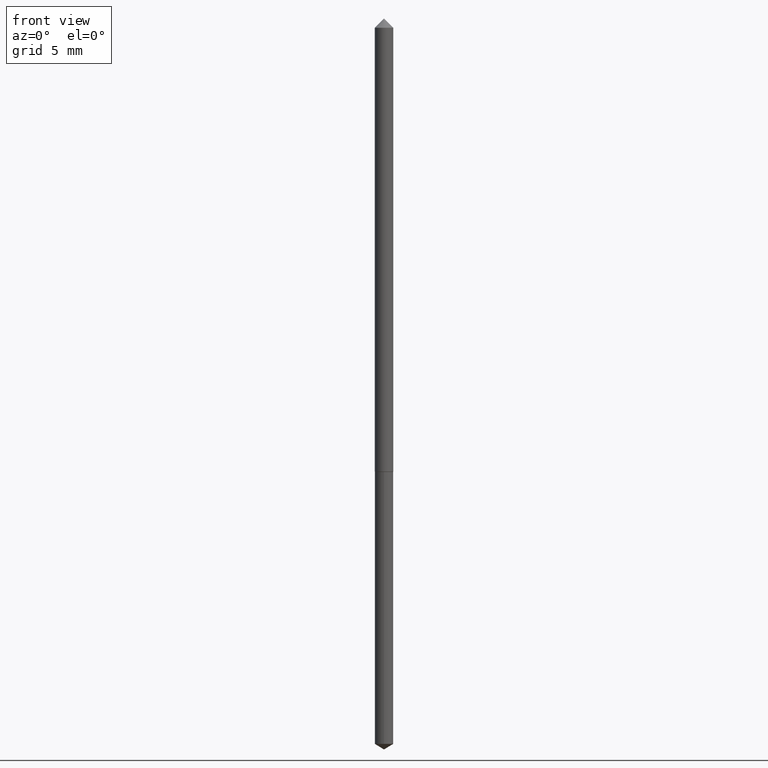
[diagram: clean part render]
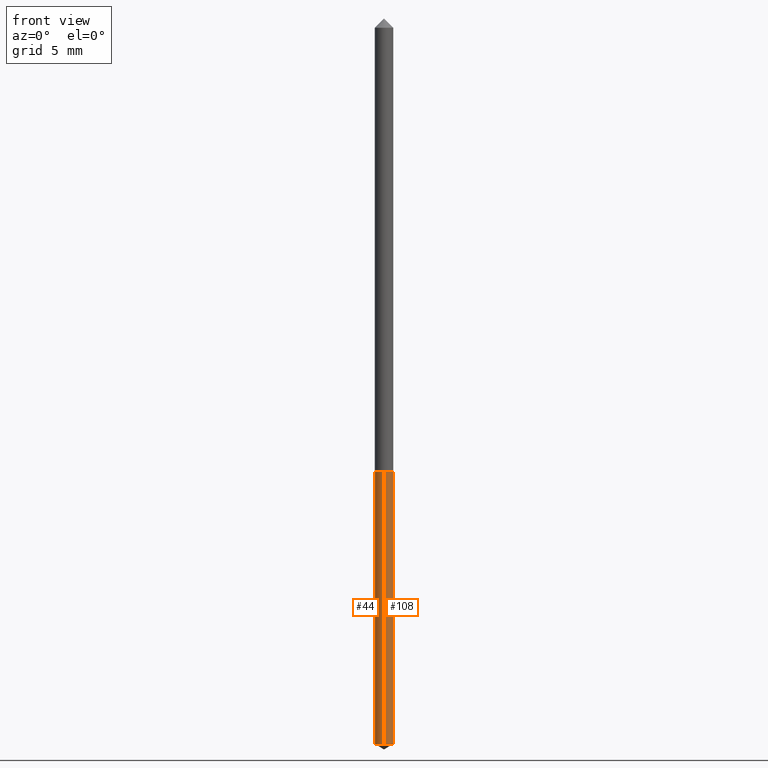
[diagram: same view with one multi-face feature highlighted, each face labeled with its STEP entity id]
A machine part, front view. The highlighted faces form ONE feature: a constant-radius fillet chain: 2 tangent blend faces with common blend radius 0.3962 mm. The faces share edges in the B-rep.
Their STEP definitions:
[1] entity #108 (Cylinder):
#16 = FACE_OUTER_BOUND ( 'NONE', #255, .T. ) ;
#23 = AXIS2_PLACEMENT_3D ( 'NONE', #193, #140, #110 ) ;
#25 = CARTESIAN_POINT ( 'NONE',  ( 1.108446667786060567E-16, 0.01559999999999727403, -0.7812000000000001165 ) ) ;
#49 = DIRECTION ( 'NONE',  ( -2.445620456542437956E-29, 3.491264166900087350E-15, 1.000000000000000000 ) ) ;
#51 = EDGE_CURVE ( 'NONE', #150, #241, #308, .T. ) ;
#55 = DIRECTION ( 'NONE',  ( -2.445620456542437956E-29, 3.491264166900087744E-15, 1.000000000000000000 ) ) ;
#73 = CARTESIAN_POINT ( 'NONE',  ( -1.089342177718866371E-16, -0.01560000000000272627, -0.7812000000000001165 ) ) ;
#76 = DIRECTION ( 'NONE',  ( -2.445620456542437956E-29, 3.491264166900087350E-15, 1.000000000000000000 ) ) ;
#95 = ORIENTED_EDGE ( 'NONE', *, *, #257, .F. ) ;
#96 = ORIENTED_EDGE ( 'NONE', *, *, #195, .T. ) ;
#97 = LINE ( 'NONE', #219, #152 ) ;
#108 = ADVANCED_FACE ( 'NONE', ( #16 ), #356, .T. ) ;
#110 = DIRECTION ( 'NONE',  ( -6.982962677686265922E-15, -1.000000000000000000, 0.000000000000000000 ) ) ;
#115 = CIRCLE ( 'NONE', #23, 0.01559999999999999928 ) ;
#133 = CARTESIAN_POINT ( 'NONE',  ( 1.910400231391829134E-29, -2.727545221904265644E-15, -0.7812000000000001165 ) ) ;
#139 = CARTESIAN_POINT ( 'NONE',  ( 3.033983259884700615E-29, -4.331524758230234496E-15, -1.240626574343170141 ) ) ;
#140 = DIRECTION ( 'NONE',  ( -2.445620456542437956E-29, 3.491264166900087744E-15, 1.000000000000000000 ) ) ;
#150 = VERTEX_POINT ( 'NONE', #187 ) ;
#152 = VECTOR ( 'NONE', #49, 39.37007874015748143 ) ;
#179 = VERTEX_POINT ( 'NONE', #357 ) ;
#186 = DIRECTION ( 'NONE',  ( -2.445620456542437956E-29, 3.491264166900087744E-15, 1.000000000000000000 ) ) ;
#187 = CARTESIAN_POINT ( 'NONE',  ( -1.089342177718754328E-16, -0.01560000000000433609, -1.240626574343170141 ) ) ;
#193 = CARTESIAN_POINT ( 'NONE',  ( 1.910400231391829134E-29, -2.727545221904265644E-15, -0.7812000000000001165 ) ) ;
#195 = EDGE_CURVE ( 'NONE', #179, #286, #97, .T. ) ;
#201 = ORIENTED_EDGE ( 'NONE', *, *, #51, .F. ) ;
#218 = AXIS2_PLACEMENT_3D ( 'NONE', #139, #55, #254 ) ;
#219 = CARTESIAN_POINT ( 'NONE',  ( 1.108446667785947168E-16, 0.01559999999999727056, -0.7812000000000001165 ) ) ;
#236 = ORIENTED_EDGE ( 'NONE', *, *, #307, .T. ) ;
#241 = VERTEX_POINT ( 'NONE', #341 ) ;
#247 = DIRECTION ( 'NONE',  ( -6.982962677686265922E-15, -1.000000000000000000, 0.000000000000000000 ) ) ;
#254 = DIRECTION ( 'NONE',  ( -6.982962677686265922E-15, -1.000000000000000000, 0.000000000000000000 ) ) ;
#255 = EDGE_LOOP ( 'NONE', ( #236, #96, #95, #201 ) ) ;
#257 = EDGE_CURVE ( 'NONE', #241, #286, #115, .T. ) ;
#268 = CIRCLE ( 'NONE', #218, 0.01559999999999999928 ) ;
#283 = AXIS2_PLACEMENT_3D ( 'NONE', #133, #186, #247 ) ;
#286 = VERTEX_POINT ( 'NONE', #25 ) ;
#307 = EDGE_CURVE ( 'NONE', #150, #179, #268, .T. ) ;
#308 = LINE ( 'NONE', #73, #331 ) ;
#331 = VECTOR ( 'NONE', #76, 39.37007874015748143 ) ;
#341 = CARTESIAN_POINT ( 'NONE',  ( -1.089342177718866371E-16, -0.01560000000000272627, -0.7812000000000001165 ) ) ;
#356 = CYLINDRICAL_SURFACE ( 'NONE', #283, 0.01559999999999999928 ) ;
#357 = CARTESIAN_POINT ( 'NONE',  ( 1.108446667786059827E-16, 0.01559999999999567115, -1.240626574343170141 ) ) ;
[2] entity #44 (Cylinder):
#24 = CIRCLE ( 'NONE', #304, 0.01559999999999999928 ) ;
#25 = CARTESIAN_POINT ( 'NONE',  ( 1.108446667786060567E-16, 0.01559999999999727403, -0.7812000000000001165 ) ) ;
#43 = ORIENTED_EDGE ( 'NONE', *, *, #342, .F. ) ;
#44 = ADVANCED_FACE ( 'NONE', ( #75 ), #100, .T. ) ;
#49 = DIRECTION ( 'NONE',  ( -2.445620456542437956E-29, 3.491264166900087350E-15, 1.000000000000000000 ) ) ;
#51 = EDGE_CURVE ( 'NONE', #150, #241, #308, .T. ) ;
#57 = CARTESIAN_POINT ( 'NONE',  ( 3.033983259884700615E-29, -4.331524758230234496E-15, -1.240626574343170141 ) ) ;
#60 = ORIENTED_EDGE ( 'NONE', *, *, #301, .T. ) ;
#73 = CARTESIAN_POINT ( 'NONE',  ( -1.089342177718866371E-16, -0.01560000000000272627, -0.7812000000000001165 ) ) ;
#75 = FACE_OUTER_BOUND ( 'NONE', #153, .T. ) ;
#76 = DIRECTION ( 'NONE',  ( -2.445620456542437956E-29, 3.491264166900087350E-15, 1.000000000000000000 ) ) ;
#83 = DIRECTION ( 'NONE',  ( -2.445620456542437956E-29, 3.491264166900087744E-15, 1.000000000000000000 ) ) ;
#97 = LINE ( 'NONE', #219, #152 ) ;
#100 = CYLINDRICAL_SURFACE ( 'NONE', #326, 0.01559999999999999928 ) ;
#145 = ORIENTED_EDGE ( 'NONE', *, *, #195, .F. ) ;
#150 = VERTEX_POINT ( 'NONE', #187 ) ;
#152 = VECTOR ( 'NONE', #49, 39.37007874015748143 ) ;
#153 = EDGE_LOOP ( 'NONE', ( #145, #60, #316, #43 ) ) ;
#167 = DIRECTION ( 'NONE',  ( -2.445620456542437956E-29, 3.491264166900087744E-15, 1.000000000000000000 ) ) ;
#169 = DIRECTION ( 'NONE',  ( -6.982962677686265922E-15, -1.000000000000000000, 0.000000000000000000 ) ) ;
#179 = VERTEX_POINT ( 'NONE', #357 ) ;
#187 = CARTESIAN_POINT ( 'NONE',  ( -1.089342177718754328E-16, -0.01560000000000433609, -1.240626574343170141 ) ) ;
#195 = EDGE_CURVE ( 'NONE', #179, #286, #97, .T. ) ;
#215 = DIRECTION ( 'NONE',  ( -6.982962677686265922E-15, -1.000000000000000000, 0.000000000000000000 ) ) ;
#219 = CARTESIAN_POINT ( 'NONE',  ( 1.108446667785947168E-16, 0.01559999999999727056, -0.7812000000000001165 ) ) ;
#226 = CARTESIAN_POINT ( 'NONE',  ( 1.910400231391829134E-29, -2.727545221904265644E-15, -0.7812000000000001165 ) ) ;
#229 = CIRCLE ( 'NONE', #279, 0.01559999999999999928 ) ;
#241 = VERTEX_POINT ( 'NONE', #341 ) ;
#245 = CARTESIAN_POINT ( 'NONE',  ( 1.910400231391829134E-29, -2.727545221904265644E-15, -0.7812000000000001165 ) ) ;
#272 = DIRECTION ( 'NONE',  ( -2.445620456542437956E-29, 3.491264166900087744E-15, 1.000000000000000000 ) ) ;
#279 = AXIS2_PLACEMENT_3D ( 'NONE', #226, #83, #169 ) ;
#286 = VERTEX_POINT ( 'NONE', #25 ) ;
#301 = EDGE_CURVE ( 'NONE', #179, #150, #24, .T. ) ;
#304 = AXIS2_PLACEMENT_3D ( 'NONE', #57, #167, #360 ) ;
#308 = LINE ( 'NONE', #73, #331 ) ;
#316 = ORIENTED_EDGE ( 'NONE', *, *, #51, .T. ) ;
#326 = AXIS2_PLACEMENT_3D ( 'NONE', #245, #272, #215 ) ;
#331 = VECTOR ( 'NONE', #76, 39.37007874015748143 ) ;
#341 = CARTESIAN_POINT ( 'NONE',  ( -1.089342177718866371E-16, -0.01560000000000272627, -0.7812000000000001165 ) ) ;
#342 = EDGE_CURVE ( 'NONE', #286, #241, #229, .T. ) ;
#357 = CARTESIAN_POINT ( 'NONE',  ( 1.108446667786059827E-16, 0.01559999999999567115, -1.240626574343170141 ) ) ;
#360 = DIRECTION ( 'NONE',  ( -6.982962677686265922E-15, -1.000000000000000000, 0.000000000000000000 ) ) ;